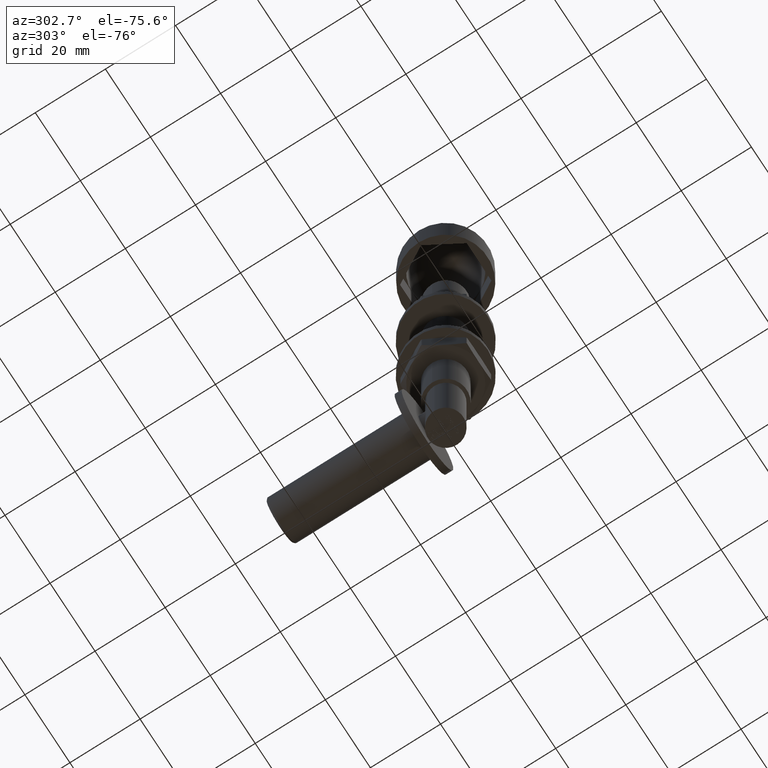
[diagram: clean part render]
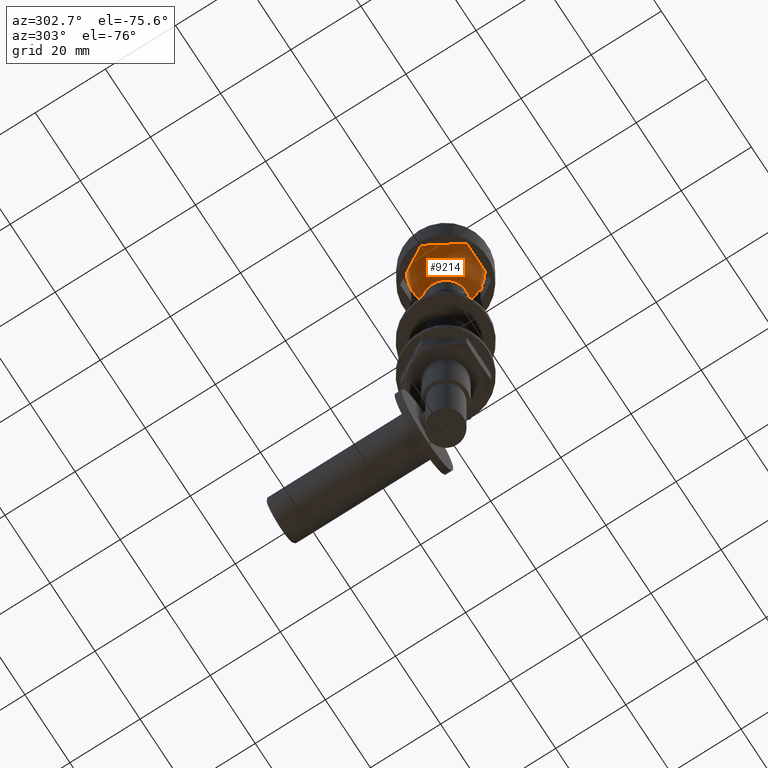
[diagram: same view with one face highlighted and labeled with its STEP entity id]
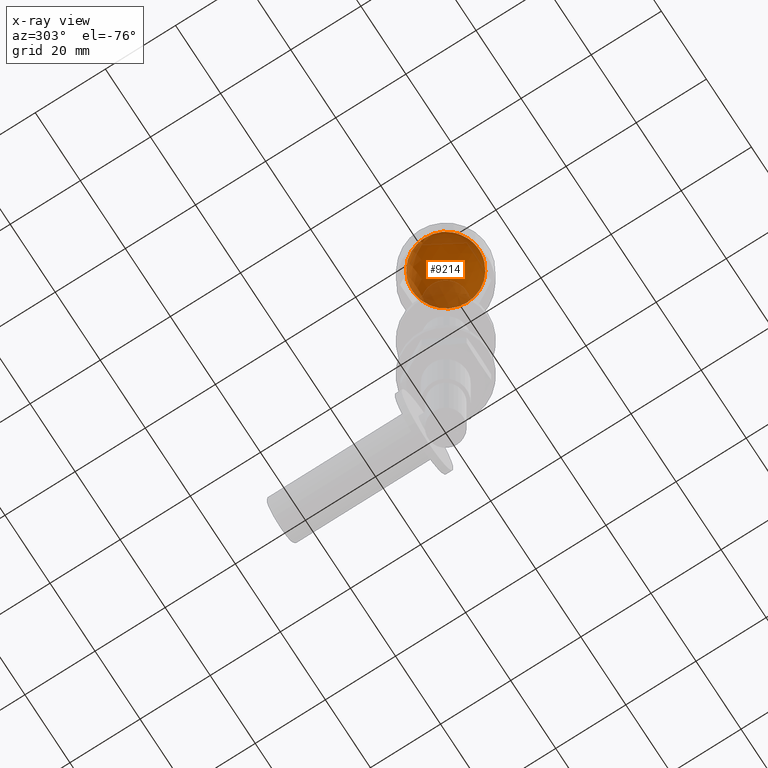
[diagram: x-ray of the same camera — body ghosted, the highlighted face saturated]
A machine part, auxiliary view. The second image highlights one B-rep face of the part: STEP entity #9214.
The next image is the same camera in x-ray: the body ghosted, the highlighted face saturated — about 31% of this face is hidden behind the body in this view.
In plain terms, the highlighted spherical surface has radius 9.5805 mm.
Its self-contained STEP definition (entity closure, byte-faithful):
#1203 = CARTESIAN_POINT ( 'NONE',  ( 2.524354896707237777E-26, 10.66319444444444997, 0.000000000000000000 ) ) ;
#1382 = AXIS2_PLACEMENT_3D ( 'NONE', #4186, #10300, #10359 ) ;
#1432 = CARTESIAN_POINT ( 'NONE',  ( -9.499999999999992895, 11.90218495934958476, 0.000000000000000000 ) ) ;
#3486 = ORIENTED_EDGE ( 'NONE', *, *, #7380, .F. ) ;
#3778 = DIRECTION ( 'NONE',  ( 1.000000000000000000, 3.621380549888468466E-16, 0.000000000000000000 ) ) ;
#4186 = CARTESIAN_POINT ( 'NONE',  ( 2.159320426405904822E-15, 11.90218495934958831, 0.000000000000000000 ) ) ;
#4855 = DIRECTION ( 'NONE',  ( 0.000000000000000000, 0.000000000000000000, -1.000000000000000000 ) ) ;
#7380 = EDGE_CURVE ( 'NONE', #11381, #11381, #12147, .T. ) ;
#8127 = EDGE_LOOP ( 'NONE', ( #3486 ) ) ;
#8191 = AXIS2_PLACEMENT_3D ( 'NONE', #1203, #4855, #3778 ) ;
#9214 = ADVANCED_FACE ( 'NONE', ( #15307 ), #12057, .F. ) ;
#10300 = DIRECTION ( 'NONE',  ( -4.435642450600503880E-16, 1.000000000000000000, -0.000000000000000000 ) ) ;
#10359 = DIRECTION ( 'NONE',  ( -1.000000000000000000, -3.652049423109069799E-16, 0.000000000000000000 ) ) ;
#11381 = VERTEX_POINT ( 'NONE', #1432 ) ;
#12057 = SPHERICAL_SURFACE ( 'NONE', #8191, 9.580453929539292091 ) ;
#12147 = CIRCLE ( 'NONE', #1382, 9.499999999999994671 ) ;
#15307 = FACE_OUTER_BOUND ( 'NONE', #8127, .T. ) ;